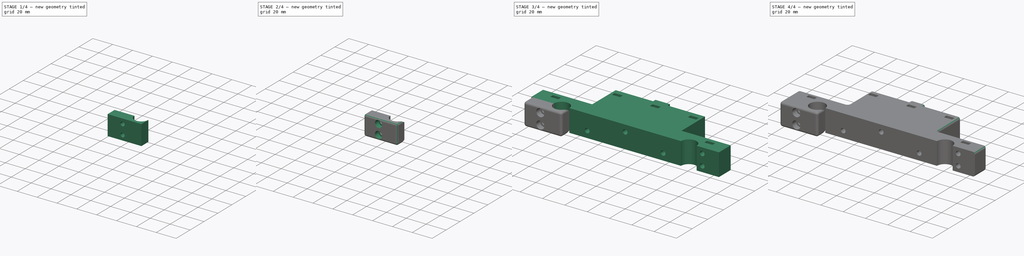
[diagram: build sequence overview — one tinted view per stage of 4, left to right]
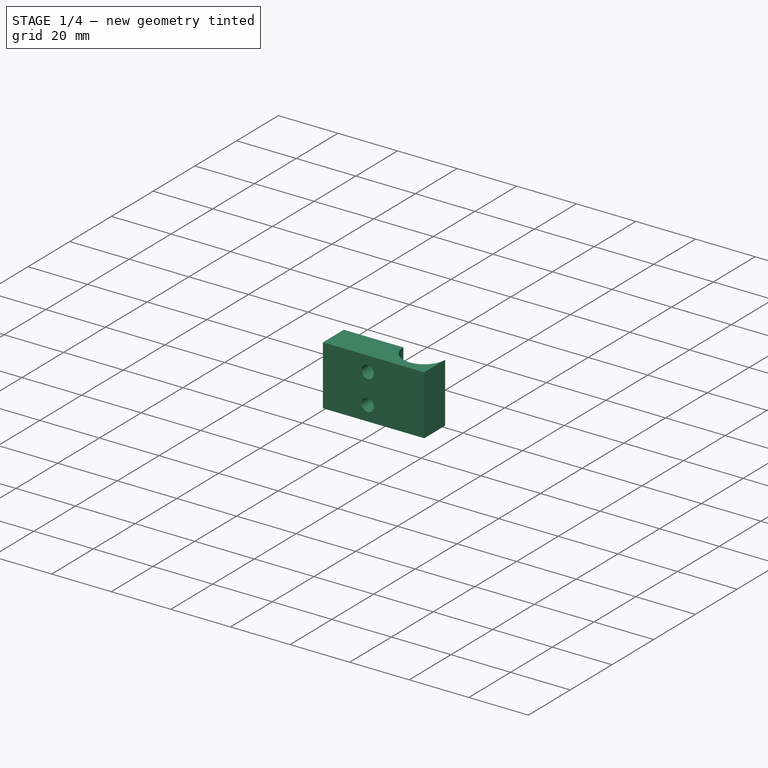
[diagram: stage 1 of 4 — iso view after this stage's code; geometry added in this stage tinted green]
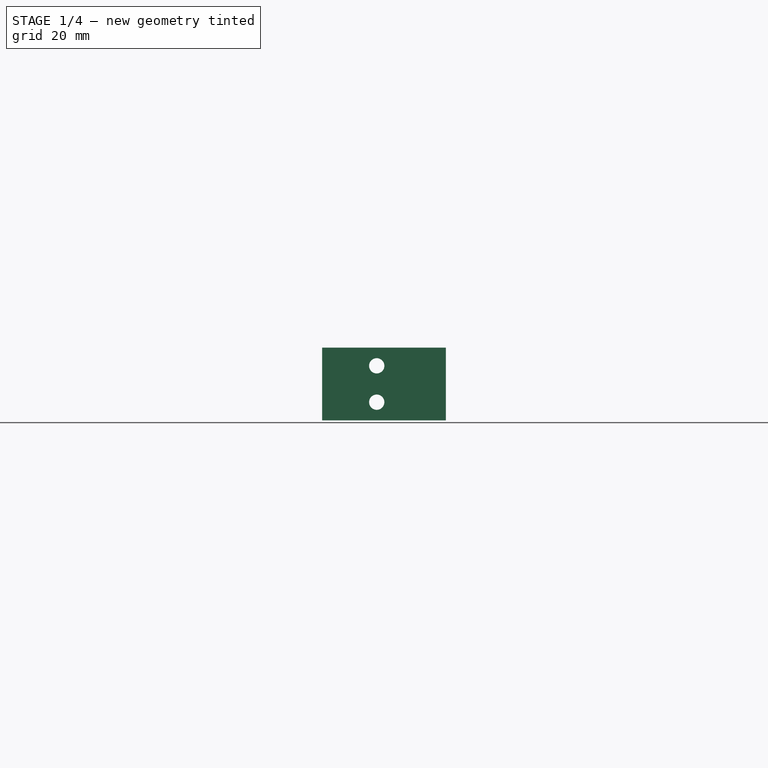
[diagram: stage 1 of 4 — front view after this stage's code; geometry added in this stage tinted green]
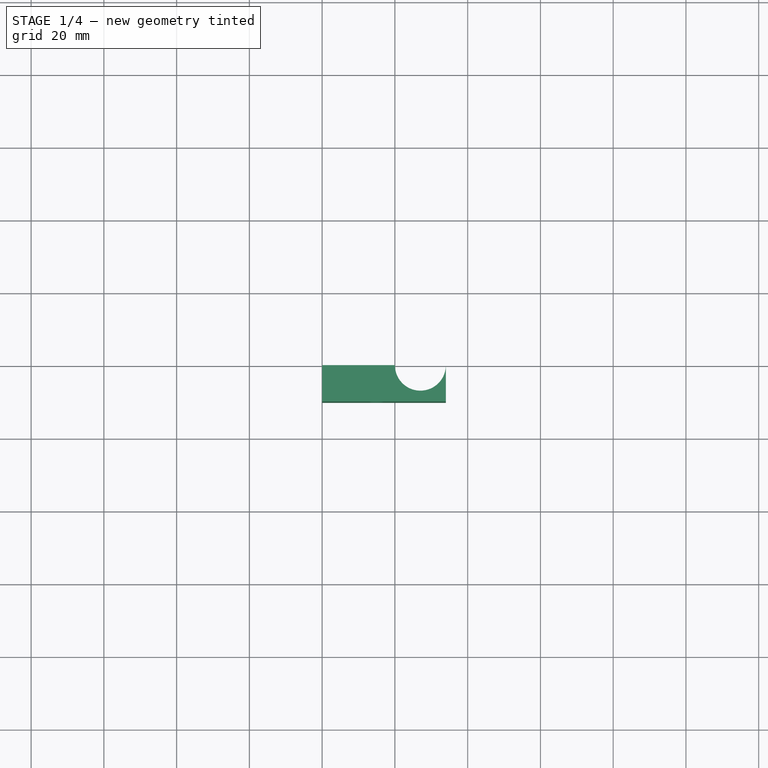
[diagram: stage 1 of 4 — top view after this stage's code; geometry added in this stage tinted green]
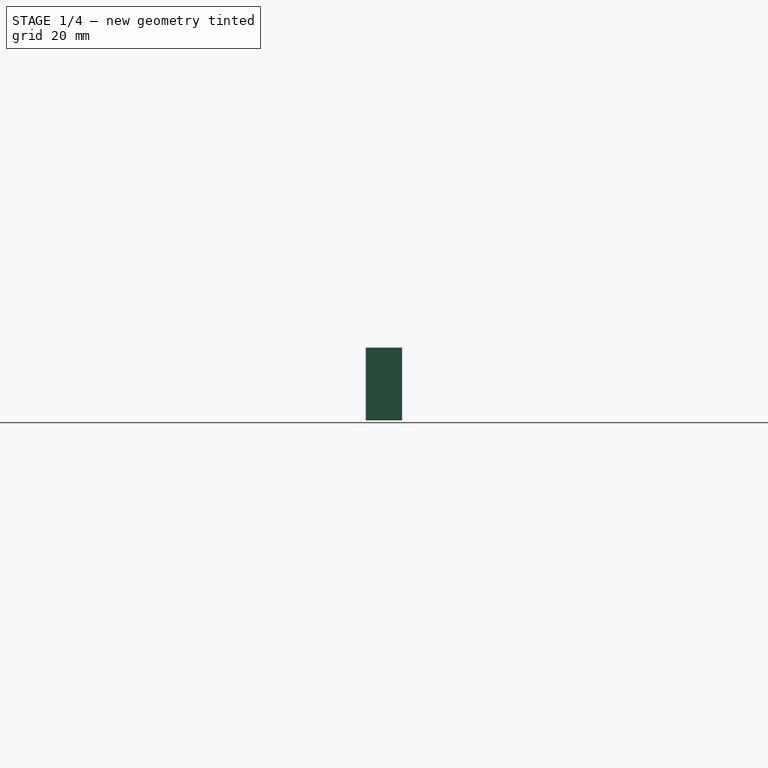
[diagram: stage 1 of 4 — right view after this stage's code; geometry added in this stage tinted green]
FCSTD DOCUMENT  (FreeCAD 0.17R13541 (Git))
Label: back-light-france
License: All rights reserved
LicenseURL: http://en.wikipedia.org/wiki/All_rights_reserved
objects: Sketcher::SketchObject×7, PartDesign::Pocket×5, PartDesign::Pad×2, PartDesign::Fillet×2, PartDesign::Body×2
note: 25 computed .brp shape members not serialized (recipe doc carries the construction recipe); baked Part::Feature solids carry a one-line shape summary decoded from their .brp

FEATURE [Sketcher::SketchObject] Sketch004
  MapMode = 5
  Support = -> [XY_Plane001]
  sketch-geometry (6):
    g0: LineSegment [constr] StartX=0 StartY=0 StartZ=0 EndX=34 EndY=0 EndZ=0
    g1: LineSegment StartX=34 StartY=0 StartZ=0 EndX=34 EndY=-10 EndZ=0
    g2: LineSegment StartX=34 StartY=-10 StartZ=0 EndX=0 EndY=-10 EndZ=0
    g3: LineSegment StartX=0 StartY=-10 StartZ=0 EndX=0 EndY=0 EndZ=0
    g4: ArcOfCircle CenterX=27 CenterY=0 CenterZ=0 NormalX=0 NormalY=0 NormalZ=1 AngleXU=0 Radius=7 StartAngle=3.14159 EndAngle=6.28319
    g5: LineSegment StartX=20 StartY=0 StartZ=0 EndX=0 EndY=0 EndZ=0
  constraints (17):
    c: Coincident(g0,g1)
    c: Coincident(g1,g2)
    c: Coincident(g2,g3)
    c: Coincident(g3,g0)
    c: Horizontal(g0)
    c: Horizontal(g2)
    c: Vertical(g1)
    c: Vertical(g3)
    c: Coincident(g0,g-1)
    c: DistanceY(g3,g3) = 10
    c: DistanceX(g2,g2) = 34
    c: PointOnObject(g4,g0)
    c: PointOnObject(g4,g0)
    c: Coincident(g4,g0)
    c: Radius(g4) = 7
    c: Coincident(g5,g4)
    c: Coincident(g5,g-1)
FEATURE [PartDesign::Pad] Pad001
  Length = 20
  Length2 = 100
  Midplane = true
  Profile = -> Sketch004
  Type = 0
FEATURE [Sketcher::SketchObject] Sketch005
  ExternalGeometry = -> [Pad001]
  MapMode = 5
  Placement = pos=(0,-10,0) rot=(1,0,0;1.5708rad)
  Support = -> [Pad001]
  sketch-geometry (5):
    g0: Circle CenterX=15 CenterY=5 CenterZ=0 NormalX=0 NormalY=0 NormalZ=1 AngleXU=0 Radius=2.1
    g1: Circle CenterX=15 CenterY=-5 CenterZ=0 NormalX=0 NormalY=0 NormalZ=1 AngleXU=0 Radius=2.1
    g2: LineSegment [constr] StartX=15 StartY=-5 StartZ=0 EndX=15 EndY=5 EndZ=0
    g3: LineSegment [constr] StartX=15 StartY=5 StartZ=0 EndX=15 EndY=10 EndZ=0
    g4: LineSegment [constr] StartX=15 StartY=-5 StartZ=0 EndX=15 EndY=-10 EndZ=0
  constraints (14):
    c: Equal(g0,g1)
    c: Coincident(g2,g0)
    c: Vertical(g2)
    c: Coincident(g2,g1)
    c: Radius(g1) = 2.1
    c: Coincident(g3,g0)
    c: PointOnObject(g3,g-3)
    c: Coincident(g4,g1)
    c: PointOnObject(g4,g-4)
    c: Vertical(g4)
    c: Vertical(g3)
    c: Equal(g3,g4)
    c: DistanceX(g-5,g1) = 15
    c: DistanceY(g0,g3) = 5
FEATURE [PartDesign::Pocket] Pocket003
  BaseFeature = -> Pad001
  Length = 5
  Length2 = 100
  Profile = -> Sketch005
  Type = 1
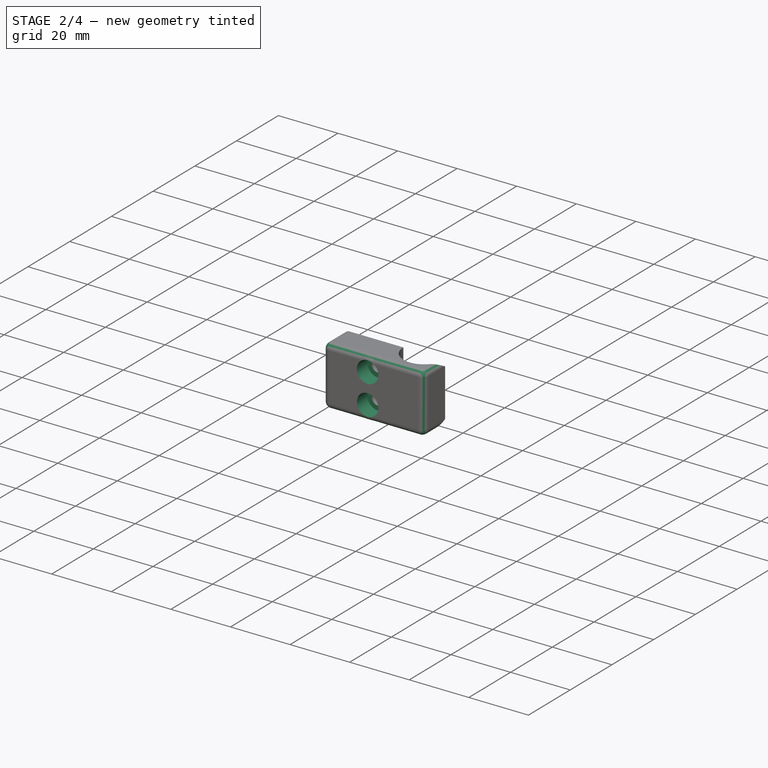
[diagram: stage 2 of 4 — iso view after this stage's code; geometry added in this stage tinted green]
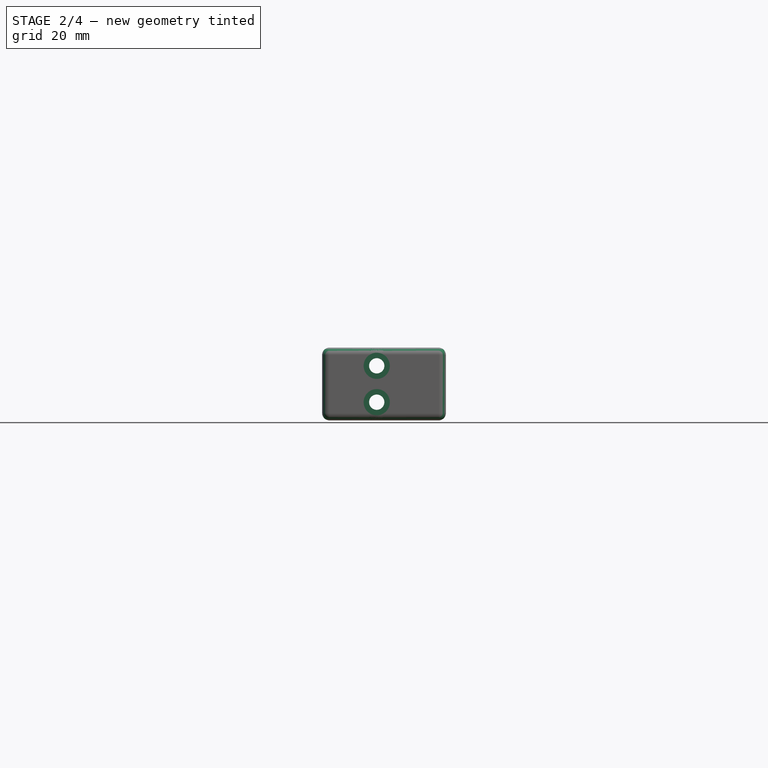
[diagram: stage 2 of 4 — front view after this stage's code; geometry added in this stage tinted green]
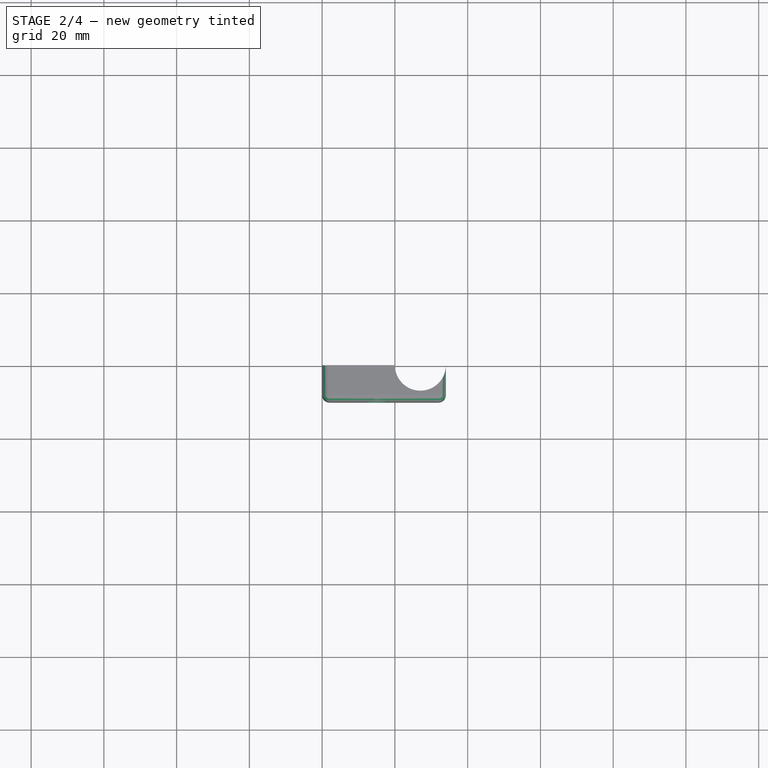
[diagram: stage 2 of 4 — top view after this stage's code; geometry added in this stage tinted green]
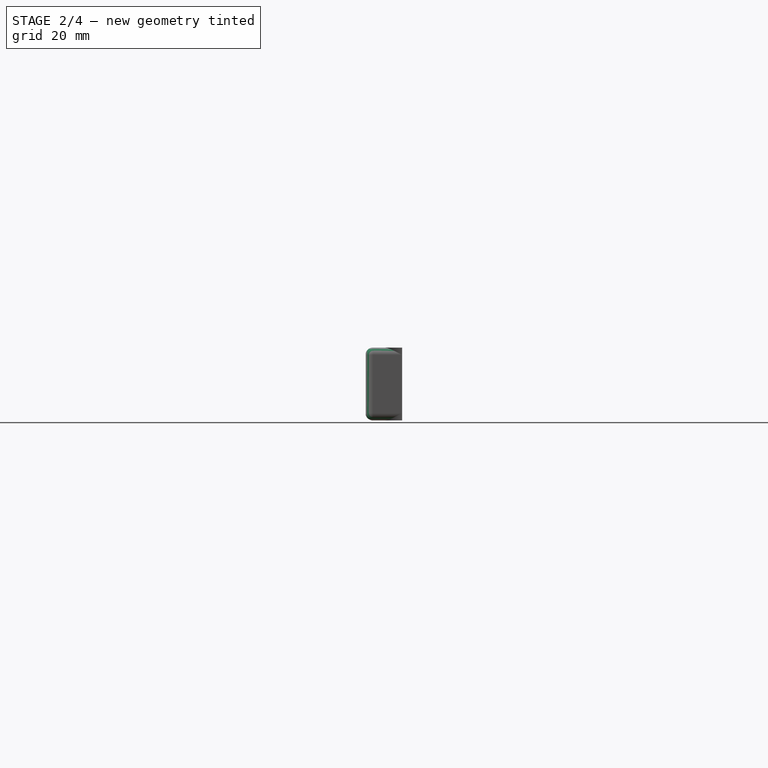
[diagram: stage 2 of 4 — right view after this stage's code; geometry added in this stage tinted green]
FEATURE [PartDesign::Body] Body
  Group = -> [Sketch,Pad,Sketch001,Pocket,Sketch003,Pocket002,Sketch006,Pocket004,Fillet001]
  Origin = -> Origin
  Tip = -> Fillet001
FEATURE [Sketcher::SketchObject] Sketch007
  ExternalGeometry = -> [Pocket003]
  MapMode = 5
  Placement = pos=(0,-10,0) rot=(1,0,0;1.5708rad)
  Support = -> [Pocket003]
  sketch-geometry (3):
    g0: Circle CenterX=15 CenterY=5 CenterZ=0 NormalX=0 NormalY=0 NormalZ=1 AngleXU=0 Radius=3.6
    g1: Circle CenterX=15 CenterY=-5 CenterZ=0 NormalX=0 NormalY=0 NormalZ=1 AngleXU=0 Radius=3.6
    g2: LineSegment [constr] StartX=15 StartY=5 StartZ=0 EndX=15 EndY=-5 EndZ=0
  constraints (8):
    c: Equal(g0,g1)
    c: Radius(g0) = 3.6
    c: Coincident(g2,g0)
    c: Coincident(g2,g1)
    c: Vertical(g2)
    c: DistanceY(g0,g-3) = 5
    c: DistanceY(g-3,g1) = 5
    c: DistanceX(g-3,g1) = 15
FEATURE [PartDesign::Pocket] Pocket005
  BaseFeature = -> Pocket003
  Length = 5
  Length2 = 100
  Profile = -> Sketch007
  Type = 0
FEATURE [PartDesign::Fillet] Fillet
  Base = -> Pocket005 [Edge4,Edge9,Edge2,Edge8,Edge10,Edge15,Edge13,Edge3]
  BaseFeature = -> Pocket005
  Radius = 2
FEATURE [PartDesign::Body] Body001
  Group = -> [Sketch004,Pad001,Sketch005,Pocket003,Sketch007,Pocket005,Fillet]
  Origin = -> Origin001
  Tip = -> Fillet
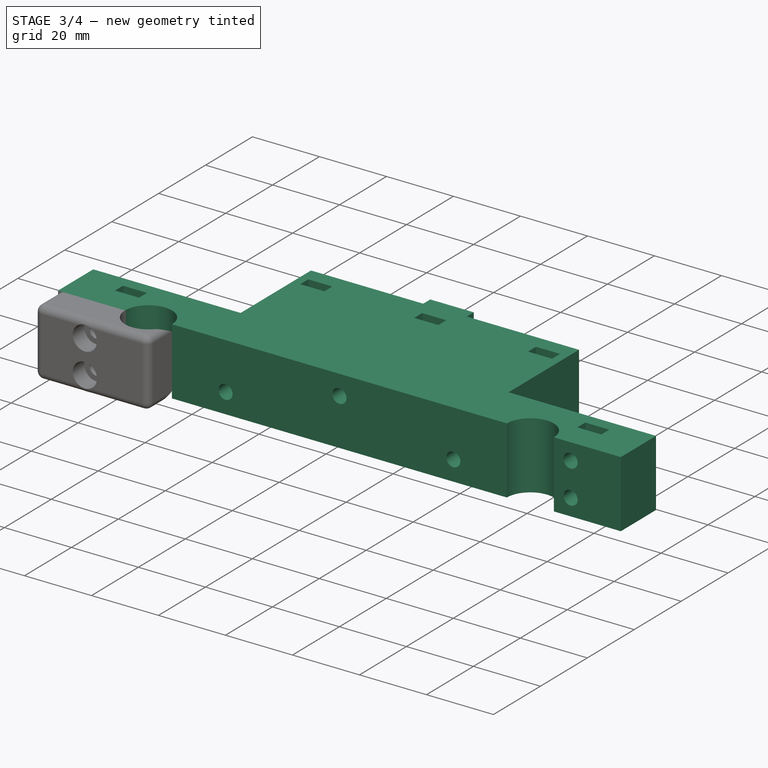
[diagram: stage 3 of 4 — iso view after this stage's code; geometry added in this stage tinted green]
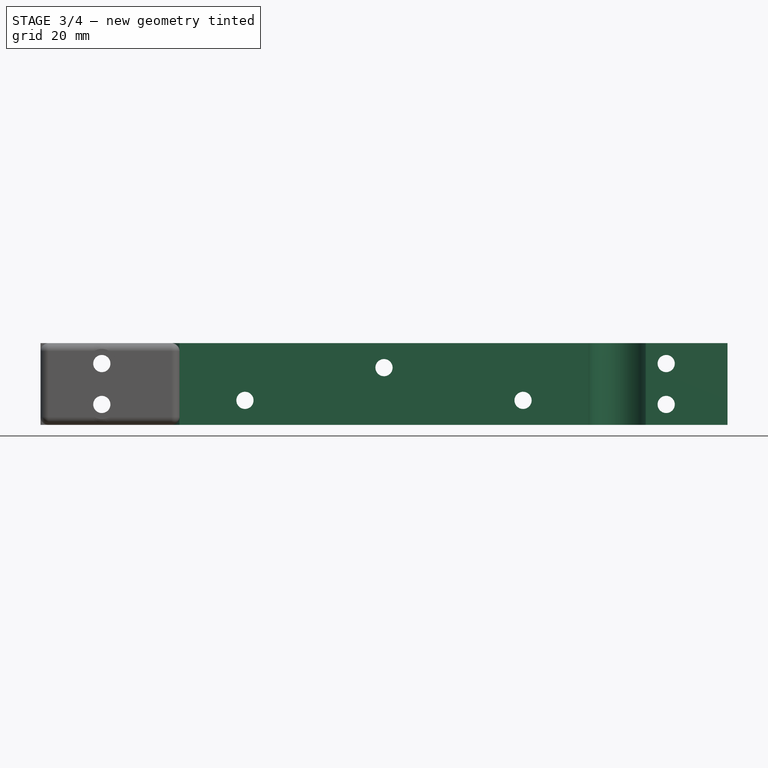
[diagram: stage 3 of 4 — front view after this stage's code; geometry added in this stage tinted green]
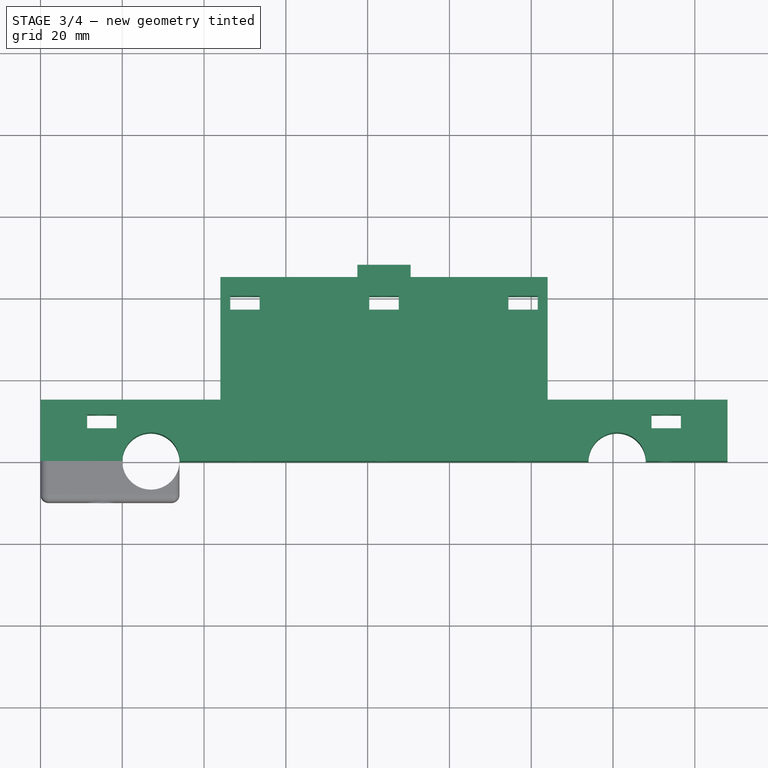
[diagram: stage 3 of 4 — top view after this stage's code; geometry added in this stage tinted green]
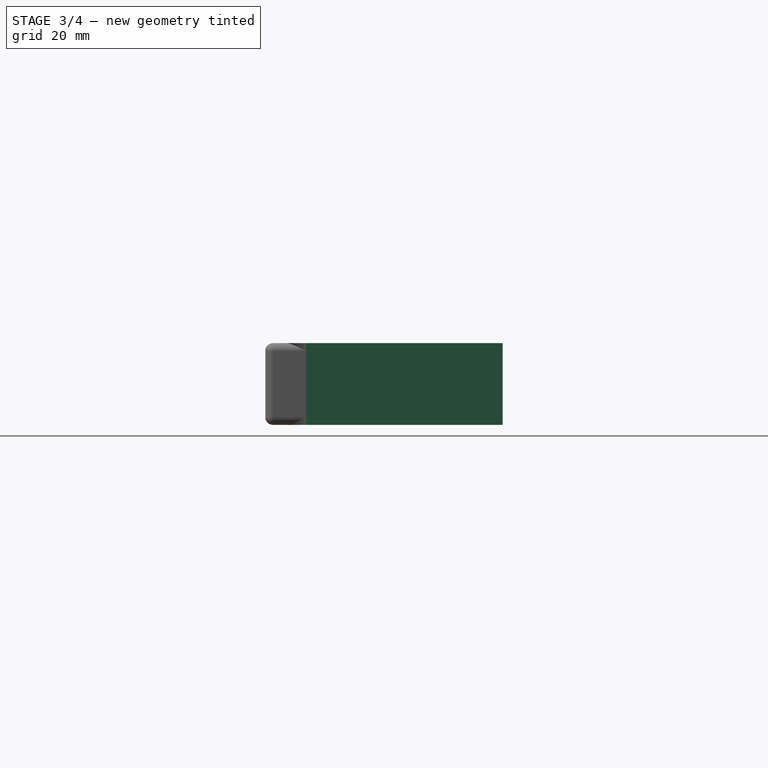
[diagram: stage 3 of 4 — right view after this stage's code; geometry added in this stage tinted green]
FEATURE [Sketcher::SketchObject] Sketch
  MapMode = 5
  Support = -> [XY_Plane]
  sketch-geometry (19):
    g0: LineSegment [constr] StartX=0 StartY=0 StartZ=0 EndX=44 EndY=45 EndZ=0
    g1: LineSegment StartX=44 StartY=45 StartZ=0 EndX=77.5 EndY=45 EndZ=0
    g2: LineSegment StartX=77.5 StartY=45 StartZ=0 EndX=77.5 EndY=48 EndZ=0
    g3: LineSegment StartX=77.5 StartY=48 StartZ=0 EndX=90.5 EndY=48 EndZ=0
    g4: LineSegment StartX=90.5 StartY=48 StartZ=0 EndX=90.5 EndY=45 EndZ=0
    g5: LineSegment StartX=90.5 StartY=45 StartZ=0 EndX=124 EndY=45 EndZ=0
    g6: LineSegment [constr] StartX=124 StartY=45 StartZ=0 EndX=168 EndY=0 EndZ=0
    g7: LineSegment [constr] StartX=77.5 StartY=45 StartZ=0 EndX=90.5 EndY=45 EndZ=0
    g8: ArcOfCircle CenterX=27 CenterY=0 CenterZ=0 NormalX=0 NormalY=0 NormalZ=1 AngleXU=0 Radius=7 StartAngle=0 EndAngle=3.14159
    g9: ArcOfCircle CenterX=141 CenterY=0 CenterZ=0 NormalX=0 NormalY=0 NormalZ=1 AngleXU=0 Radius=7 StartAngle=0 EndAngle=3.14159
    g10: LineSegment StartX=0 StartY=0 StartZ=0 EndX=20 EndY=0 EndZ=0
    g11: LineSegment StartX=34 StartY=0 StartZ=0 EndX=134 EndY=0 EndZ=0
    g12: LineSegment StartX=148 StartY=0 StartZ=0 EndX=168 EndY=0 EndZ=0
    g13: LineSegment StartX=0 StartY=0 StartZ=0 EndX=0 EndY=15 EndZ=0
    g14: LineSegment StartX=0 StartY=15 StartZ=0 EndX=44 EndY=15 EndZ=0
    g15: LineSegment StartX=44 StartY=45 StartZ=0 EndX=44 EndY=15 EndZ=0
    g16: LineSegment StartX=124 StartY=45 StartZ=0 EndX=124 EndY=15 EndZ=0
    g17: LineSegment StartX=124 StartY=15 StartZ=0 EndX=168 EndY=15 EndZ=0
    g18: LineSegment StartX=168 StartY=15 StartZ=0 EndX=168 EndY=0 EndZ=0
  constraints (55):
    c: Coincident(g0,g-1)
    c: Coincident(g1,g0)
    c: Horizontal(g1)
    c: Coincident(g2,g1)
    c: Vertical(g2)
    c: Coincident(g3,g2)
    c: Horizontal(g3)
    c: Coincident(g4,g3)
    c: Vertical(g4)
    c: Coincident(g5,g4)
    c: Horizontal(g5)
    c: Coincident(g6,g5)
    c: PointOnObject(g6,g-1)
    c: Coincident(g7,g1)
    c: Coincident(g7,g4)
    c: Horizontal(g7)
    c: Equal(g1,g5)
    c: DistanceX(g0,g5) = 80
    c: DistanceY(g2,g2) = 3
    c: PointOnObject(g8,g-1)
    c: PointOnObject(g8,g-1)
    c: PointOnObject(g8,g-1)
    c: PointOnObject(g9,g-1)
    c: PointOnObject(g9,g-1)
    c: PointOnObject(g9,g-1)
    c: Radius(g8) = 7
    c: Equal(g8,g9)
    c: Coincident(g10,g-1)
    c: Coincident(g10,g8)
    c: Coincident(g11,g8)
    c: Coincident(g11,g9)
    c: Coincident(g12,g9)
    c: Coincident(g12,g6)
    c: Equal(g10,g12)
    c: DistanceX(g8,g9) = 114
    c: DistanceY(g-1,g0) = 45
    c: Equal(g0,g6)
    c: DistanceX(g3,g3) = 13
    c: DistanceX(g10,g10) = 20
    c: Coincident(g13,g-1)
    c: Vertical(g13)
    c: Coincident(g14,g13)
    c: Horizontal(g14)
    c: Coincident(g15,g0)
    c: Coincident(g15,g14)
    c: Vertical(g15)
    c: DistanceY(g13,g13) = 15
    c: Coincident(g16,g5)
    c: Vertical(g16)
    c: Coincident(g17,g16)
    c: Horizontal(g17)
    c: Coincident(g18,g17)
    c: Coincident(g18,g6)
    c: Vertical(g18)
    c: Equal(g18,g13)
FEATURE [PartDesign::Pad] Pad
  Length = 20
  Length2 = 100
  Midplane = true
  Profile = -> Sketch
  Type = 0
FEATURE [Sketcher::SketchObject] Sketch001
  ExternalGeometry = -> [Pad]
  MapMode = 5
  Placement = pos=(0,45,0) rot=(0,0.707107,0.707107;3.14159rad)
  Support = -> [Pad]
  sketch-geometry (16):
    g0: Circle CenterX=-118 CenterY=-4 CenterZ=0 NormalX=0 NormalY=0 NormalZ=1 AngleXU=0 Radius=2.1
    g1: Circle CenterX=-84 CenterY=4 CenterZ=0 NormalX=0 NormalY=0 NormalZ=1 AngleXU=0 Radius=2.1
    g2: Circle CenterX=-50 CenterY=-4 CenterZ=0 NormalX=0 NormalY=0 NormalZ=1 AngleXU=0 Radius=2.1
    g3: LineSegment [constr] StartX=-118 StartY=-4 StartZ=0 EndX=-50 EndY=-4 EndZ=0
    g4: LineSegment [constr] StartX=-50 StartY=-4 StartZ=0 EndX=-44 EndY=-4 EndZ=0
    g5: LineSegment [constr] StartX=-124 StartY=-4 StartZ=0 EndX=-118 EndY=-4 EndZ=0
    g6: LineSegment [constr] StartX=-90.5 StartY=4 StartZ=0 EndX=-84 EndY=4 EndZ=0
    g7: LineSegment [constr] StartX=-84 StartY=4 StartZ=0 EndX=-77.5 EndY=4 EndZ=0
    g8: LineSegment [constr] StartX=-153 StartY=5 StartZ=0 EndX=-15 EndY=5 EndZ=0
    g9: LineSegment [constr] StartX=-15 StartY=5 StartZ=0 EndX=-15 EndY=-5 EndZ=0
    g10: LineSegment [constr] StartX=-15 StartY=-5 StartZ=0 EndX=-153 EndY=-5 EndZ=0
    g11: LineSegment [constr] StartX=-153 StartY=-5 StartZ=0 EndX=-153 EndY=5 EndZ=0
    g12: Circle CenterX=-153 CenterY=-5 CenterZ=0 NormalX=0 NormalY=0 NormalZ=1 AngleXU=0 Radius=2.1
    g13: Circle CenterX=-153 CenterY=5 CenterZ=0 NormalX=0 NormalY=0 NormalZ=1 AngleXU=0 Radius=2.1
    g14: Circle CenterX=-15 CenterY=5 CenterZ=0 NormalX=0 NormalY=0 NormalZ=1 AngleXU=0 Radius=2.1
    g15: Circle CenterX=-15 CenterY=-5 CenterZ=0 NormalX=0 NormalY=0 NormalZ=1 AngleXU=0 Radius=2.1
  constraints (43):
    c: Radius(g0) = 2.1
    c: Equal(g1,g0)
    c: Equal(g0,g2)
    c: Coincident(g3,g2)
    c: Horizontal(g3)
    c: Coincident(g0,g3)
    c: Coincident(g4,g2)
    c: Horizontal(g4)
    c: Coincident(g5,g0)
    c: Horizontal(g5)
    c: Equal(g4,g5)
    c: Coincident(g6,g1)
    c: Coincident(g7,g1)
    c: Horizontal(g6)
    c: Horizontal(g7)
    c: Equal(g7,g6)
    c: DistanceX(g0,g2) = 68
    c: Coincident(g8,g9)
    c: Coincident(g9,g10)
    c: Coincident(g10,g11)
    c: Coincident(g11,g8)
    c: Horizontal(g8)
    c: Horizontal(g10)
    c: Vertical(g9)
    c: Vertical(g11)
    c: DistanceX(g-10,g10) = 15
    c: DistanceX(g9,g-11) = 15
    c: DistanceY(g-10,g10) = 5
    c: DistanceY(g8,g-10) = 5
    c: PointOnObject(g5,g-6)
    c: PointOnObject(g4,g-7)
    c: DistanceY(g-7,g4) = 6
    c: PointOnObject(g6,g-9)
    c: PointOnObject(g7,g-8)
    c: DistanceY(g6,g-9) = 6
    c: Equal(g15,g13)
    c: Equal(g13,g12)
    c: Equal(g12,g14)
    c: Equal(g15,g0)
    c: Coincident(g13,g8)
    c: Coincident(g12,g10)
    c: Coincident(g14,g8)
    c: Coincident(g15,g9)
FEATURE [PartDesign::Pocket] Pocket
  BaseFeature = -> Pad
  Length = 5
  Length2 = 100
  Midplane = true
  Profile = -> Sketch001
  Type = 1
FEATURE [Sketcher::SketchObject] Sketch003
  MapMode = 5
  Placement = pos=(0,0,-10) rot=(1,0,0;3.14159rad)
  sketch-geometry (33):
    g0: LineSegment StartX=11.4 StartY=-8 StartZ=0 EndX=18.6 EndY=-8 EndZ=0
    g1: LineSegment StartX=18.6 StartY=-8 StartZ=0 EndX=18.6 EndY=-11.4 EndZ=0
    g2: LineSegment StartX=18.6 StartY=-11.4 StartZ=0 EndX=11.4 EndY=-11.4 EndZ=0
    g3: LineSegment StartX=11.4 StartY=-11.4 StartZ=0 EndX=11.4 EndY=-8 EndZ=0
    g4: LineSegment StartX=46.4 StartY=-37 StartZ=0 EndX=53.6 EndY=-37 EndZ=0
    g5: LineSegment StartX=53.6 StartY=-37 StartZ=0 EndX=53.6 EndY=-40.4 EndZ=0
    g6: LineSegment StartX=53.6 StartY=-40.4 StartZ=0 EndX=46.4 EndY=-40.4 EndZ=0
    g7: LineSegment StartX=46.4 StartY=-40.4 StartZ=0 EndX=46.4 EndY=-37 EndZ=0
    g8: LineSegment StartX=114.4 StartY=-37 StartZ=0 EndX=121.6 EndY=-37 EndZ=0
    g9: LineSegment StartX=121.6 StartY=-37 StartZ=0 EndX=121.6 EndY=-40.4 EndZ=0
    g10: LineSegment StartX=121.6 StartY=-40.4 StartZ=0 EndX=114.4 EndY=-40.4 EndZ=0
    g11: LineSegment StartX=114.4 StartY=-40.4 StartZ=0 EndX=114.4 EndY=-37 EndZ=0
    g12: LineSegment StartX=80.4 StartY=-37 StartZ=0 EndX=87.6 EndY=-37 EndZ=0
    g13: LineSegment StartX=87.6 StartY=-37 StartZ=0 EndX=87.6 EndY=-40.4 EndZ=0
    g14: LineSegment StartX=87.6 StartY=-40.4 StartZ=0 EndX=80.4 EndY=-40.4 EndZ=0
    g15: LineSegment StartX=80.4 StartY=-40.4 StartZ=0 EndX=80.4 EndY=-37 EndZ=0
    g16: LineSegment StartX=149.4 StartY=-8 StartZ=0 EndX=156.6 EndY=-8 EndZ=0
    g17: LineSegment StartX=156.6 StartY=-8 StartZ=0 EndX=156.6 EndY=-11.4 EndZ=0
    g18: LineSegment StartX=156.6 StartY=-11.4 StartZ=0 EndX=149.4 EndY=-11.4 EndZ=0
    g19: LineSegment StartX=149.4 StartY=-11.4 StartZ=0 EndX=149.4 EndY=-8 EndZ=0
    g20: LineSegment [constr] StartX=18.6 StartY=-8 StartZ=0 EndX=149.4 EndY=-8 EndZ=0
    g21: LineSegment [constr] StartX=114.4 StartY=-37 StartZ=0 EndX=87.6 EndY=-37 EndZ=0
    g22: LineSegment [constr] StartX=80.4 StartY=-37 StartZ=0 EndX=53.6 EndY=-37 EndZ=0
    g23: LineSegment [constr] StartX=121.6 StartY=-37 StartZ=0 EndX=124 EndY=-37 EndZ=0
    g24: LineSegment [constr] StartX=46.4 StartY=-37 StartZ=0 EndX=44 EndY=-37 EndZ=0
    g25: LineSegment [constr] StartX=156.6 StartY=-8 StartZ=0 EndX=168 EndY=-8 EndZ=0
    g26: LineSegment [constr] StartX=11.4 StartY=-8 StartZ=0 EndX=0 EndY=-8 EndZ=0
    g27: LineSegment [constr] StartX=46.4 StartY=-40.4 StartZ=0 EndX=50 EndY=-40.4 EndZ=0
    g28: LineSegment [constr] StartX=50 StartY=-40.4 StartZ=0 EndX=53.6 EndY=-40.4 EndZ=0
    g29: LineSegment [constr] StartX=114.4 StartY=-40.4 StartZ=0 EndX=118 EndY=-40.4 EndZ=0
    g30: LineSegment [constr] StartX=118 StartY=-40.4 StartZ=0 EndX=121.6 EndY=-40.4 EndZ=0
    g31: LineSegment [constr] StartX=18.6 StartY=-8 StartZ=0 EndX=15 EndY=-8 EndZ=0
    g32: LineSegment [constr] StartX=11.4 StartY=-8 StartZ=0 EndX=15 EndY=-8 EndZ=0
  constraints (87):
    c: Coincident(g0,g1)
    c: Coincident(g1,g2)
    c: Coincident(g2,g3)
    c: Coincident(g3,g0)
    c: Horizontal(g0)
    c: Horizontal(g2)
    c: Vertical(g1)
    c: Vertical(g3)
    c: Coincident(g4,g5)
    c: Coincident(g5,g6)
    c: Coincident(g6,g7)
    c: Coincident(g7,g4)
    c: Horizontal(g4)
    c: Horizontal(g6)
    c: Vertical(g5)
    c: Vertical(g7)
    c: Coincident(g8,g9)
    c: Coincident(g9,g10)
    c: Coincident(g10,g11)
    c: Coincident(g11,g8)
    c: Horizontal(g8)
    c: Horizontal(g10)
    c: Vertical(g9)
    c: Vertical(g11)
    c: Coincident(g12,g13)
    c: Coincident(g13,g14)
    c: Coincident(g14,g15)
    c: Coincident(g15,g12)
    c: Horizontal(g12)
    c: Horizontal(g14)
    c: Vertical(g13)
    c: Vertical(g15)
    c: Coincident(g16,g17)
    c: Coincident(g17,g18)
    c: Coincident(g18,g19)
    c: Coincident(g19,g16)
    c: Horizontal(g16)
    c: Horizontal(g18)
    c: Vertical(g17)
    c: Vertical(g19)
    c: Equal(g18,g10)
    c: Equal(g10,g14)
    c: Equal(g14,g6)
    c: Equal(g6,g2)
    c: Equal(g3,g7)
    c: Equal(g7,g15)
    c: Equal(g15,g11)
    c: Equal(g11,g19)
    c: DistanceY(g3,g3) = 3.4
    c: DistanceX(g2,g2) = 7.2
    c: Coincident(g20,g0)
    c: Coincident(g20,g16)
    c: Horizontal(g20)
    c: Coincident(g21,g8)
    c: Coincident(g21,g12)
    c: Coincident(g22,g12)
    c: Coincident(g22,g4)
    c: Equal(g22,g21)
    c: Horizontal(g21)
    c: Horizontal(g22)
    c: Coincident(g23,g8)
    c: Horizontal(g23)
    c: Coincident(g24,g4)
    c: Horizontal(g24)
    c: Equal(g24,g23)
    c: Coincident(g25,g16)
    c: Horizontal(g25)
    c: Horizontal(g26)
    c: Coincident(g0,g26)
    c: Equal(g26,g25)
    c: Coincident(g27,g6)
    c: Coincident(g28,g27)
    c: Coincident(g28,g5)
    c: Coincident(g29,g10)
    c: Coincident(g30,g29)
    c: Coincident(g30,g9)
    c: Equal(g30,g29)
    c: Equal(g28,g27)
    c: DistanceX(g27,g29) = 68
    c: PointOnObject(g27,g6)
    c: PointOnObject(g29,g10)
    c: Coincident(g32,g31)
    c: Equal(g31,g32)
    c: PointOnObject(g31,g0)
    c: DistanceX(g-1,g31) = 15
    c: Coincident(g31,g0)
    c: Coincident(g32,g0)
FEATURE [PartDesign::Pocket] Pocket002
  BaseFeature = -> Pocket
  Length = 5
  Length2 = 100
  Profile = -> Sketch003
  Type = 1
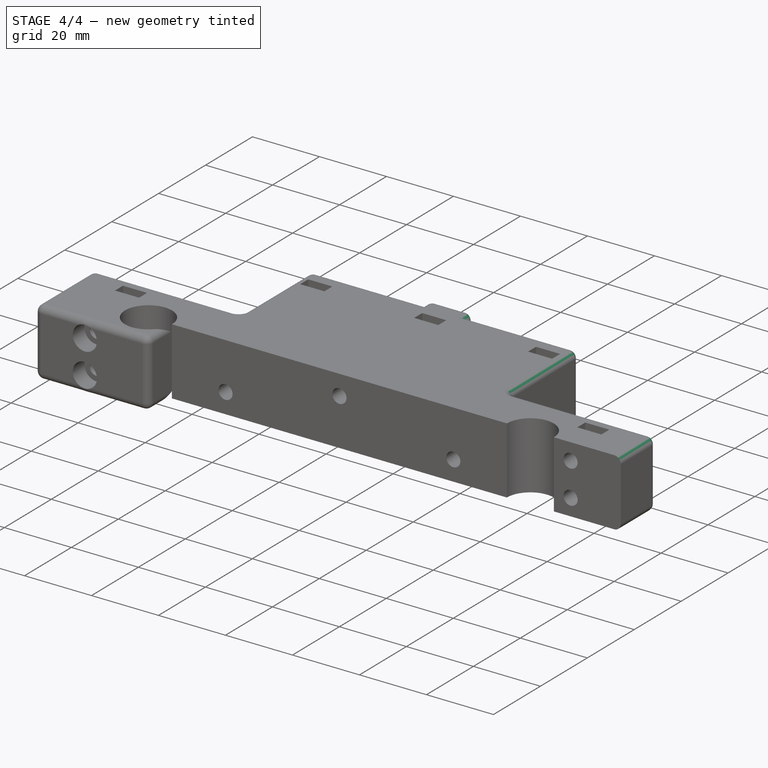
[diagram: stage 4 of 4 — iso view after this stage's code; geometry added in this stage tinted green]
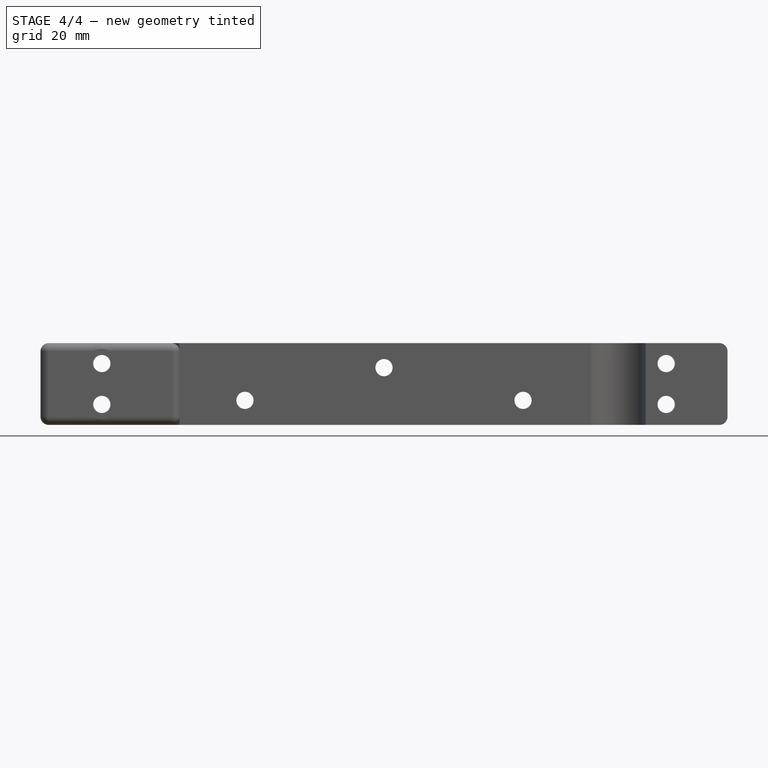
[diagram: stage 4 of 4 — front view after this stage's code; geometry added in this stage tinted green]
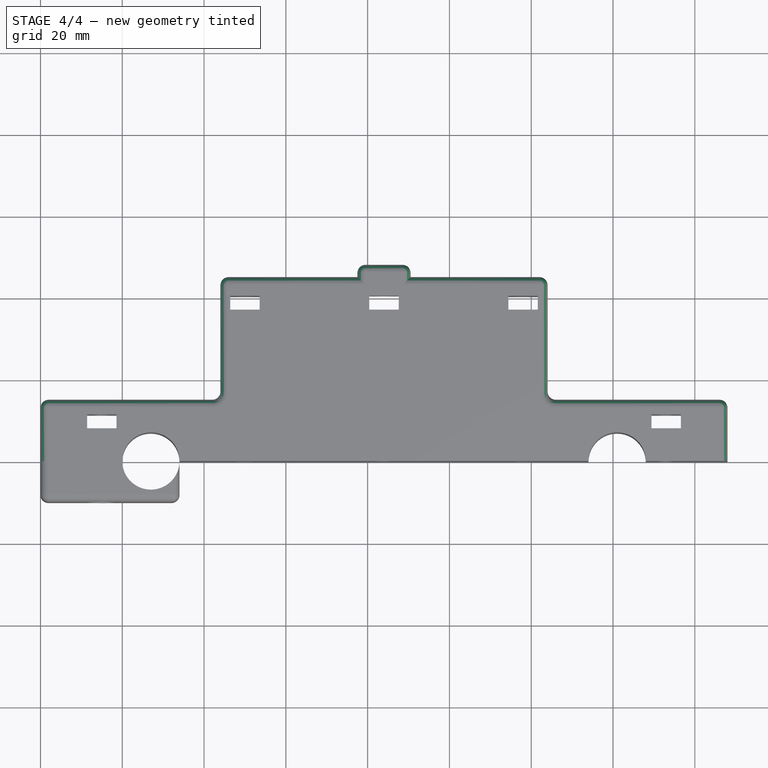
[diagram: stage 4 of 4 — top view after this stage's code; geometry added in this stage tinted green]
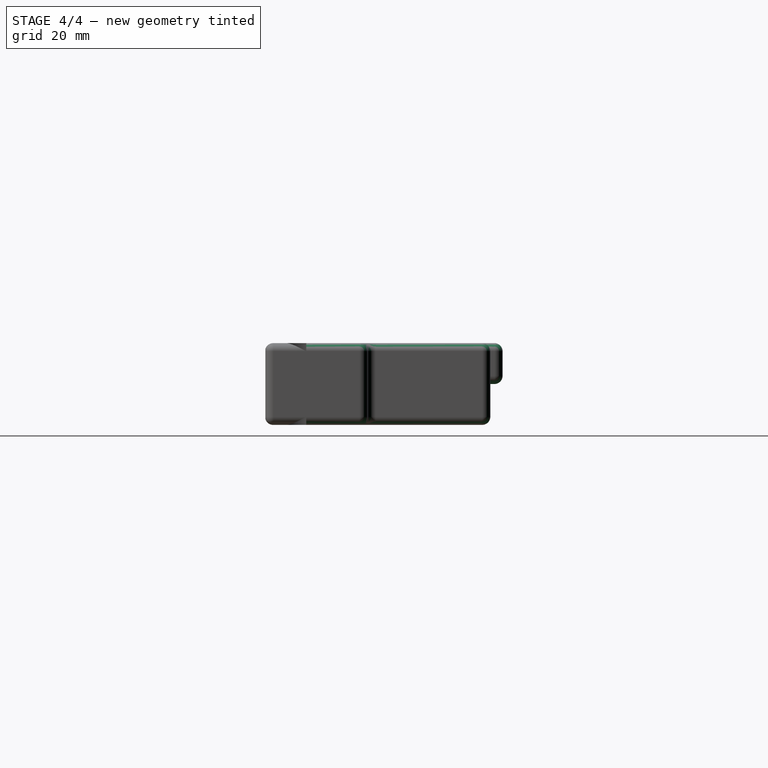
[diagram: stage 4 of 4 — right view after this stage's code; geometry added in this stage tinted green]
FEATURE [Sketcher::SketchObject] Sketch006
  ExternalGeometry = -> [Pocket002]
  MapMode = 5
  Placement = pos=(0,48,0) rot=(0,0.707107,0.707107;3.14159rad)
  Support = -> [Pocket002]
  sketch-geometry (11):
    g0: LineSegment StartX=-59 StartY=7 StartZ=0 EndX=-59 EndY=-10 EndZ=0
    g1: LineSegment StartX=-59 StartY=-10 StartZ=0 EndX=-109 EndY=-10 EndZ=0
    g2: LineSegment StartX=-109 StartY=-10 StartZ=0 EndX=-109 EndY=7 EndZ=0
    g3: LineSegment StartX=-77.5 StartY=7 StartZ=0 EndX=-77.5 EndY=0 EndZ=0
    g4: LineSegment StartX=-77.5 StartY=0 StartZ=0 EndX=-90.5 EndY=0 EndZ=0
    g5: LineSegment StartX=-90.5 StartY=0 StartZ=0 EndX=-90.5 EndY=7 EndZ=0
    g6: LineSegment StartX=-109 StartY=7 StartZ=0 EndX=-90.5 EndY=7 EndZ=0
    g7: LineSegment StartX=-77.5 StartY=7 StartZ=0 EndX=-59 EndY=7 EndZ=0
    g8: LineSegment [constr] StartX=-90.5 StartY=7 StartZ=0 EndX=-77.5 EndY=7 EndZ=0
    g9: LineSegment [constr] StartX=-124 StartY=-10 StartZ=0 EndX=-109 EndY=-10 EndZ=0
    g10: LineSegment [constr] StartX=-44 StartY=-10 StartZ=0 EndX=-59 EndY=-10 EndZ=0
  constraints (30):
    c: Coincident(g0,g1)
    c: Coincident(g1,g2)
    c: Horizontal(g1)
    c: Vertical(g0)
    c: Vertical(g2)
    c: Coincident(g3,g4)
    c: Coincident(g4,g5)
    c: Vertical(g3)
    c: Vertical(g5)
    c: Coincident(g6,g2)
    c: Coincident(g6,g5)
    c: Coincident(g7,g3)
    c: Coincident(g7,g0)
    c: Equal(g6,g7)
    c: Equal(g5,g3)
    c: Horizontal(g6)
    c: Horizontal(g7)
    c: Coincident(g8,g5)
    c: Coincident(g8,g3)
    c: Horizontal(g8)
    c: DistanceX(g1,g1) = 50
    c: DistanceX(g8,g8) = 13
    c: PointOnObject(g1,g-3)
    c: Coincident(g9,g-3)
    c: Coincident(g9,g1)
    c: Coincident(g10,g-4)
    c: Coincident(g10,g0)
    c: Equal(g10,g9)
    c: DistanceY(g5,g5) = 7
    c: DistanceY(g2,g2) = 17
FEATURE [PartDesign::Pocket] Pocket004
  BaseFeature = -> Pocket002
  Length = 45
  Length2 = 100
  Profile = -> Sketch006
  Type = 0
FEATURE [PartDesign::Fillet] Fillet001
  Base = -> Pocket004 [Edge4,Edge3,Edge11,Edge2,Edge10,Edge45,Edge27,Edge82,Edge47,Edge26,Edge12,Edge112,Edge49,Edge51,Edge142,Edge143,Edge146,Edge144,Edge145,Edge172,Edge25,Edge113,Edge170,Edge55,Edge53,Edge102,Edge99,Edge22,Edge23,Edge106,Edge108,Edge24,Edge104,Edge105,Edge107,Edge21,Edge56,Edge54,Edge20,Edge95,+3 more]
  BaseFeature = -> Pocket004
  Radius = 2
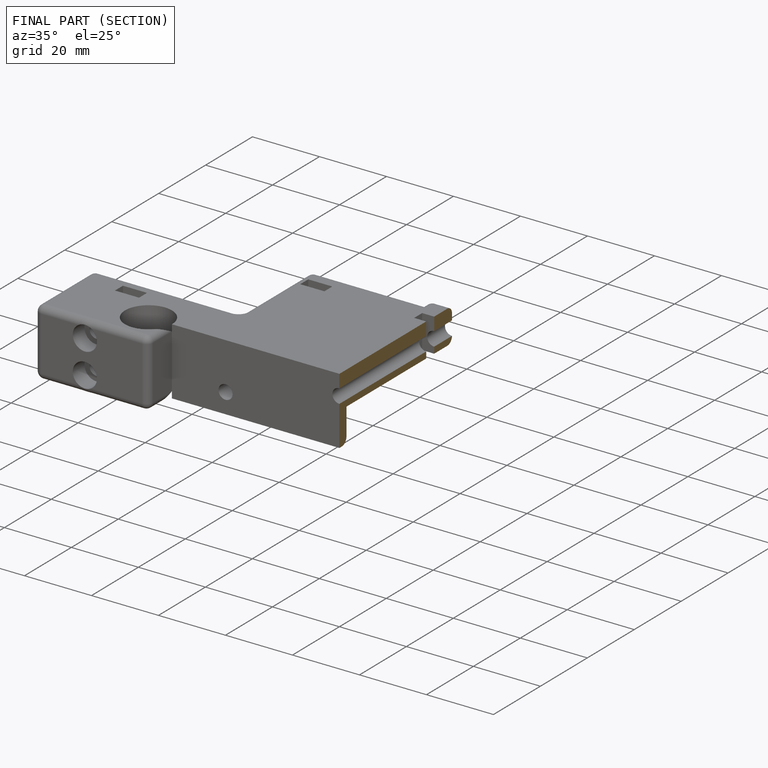
[diagram: finished part — half-section view (interior)]
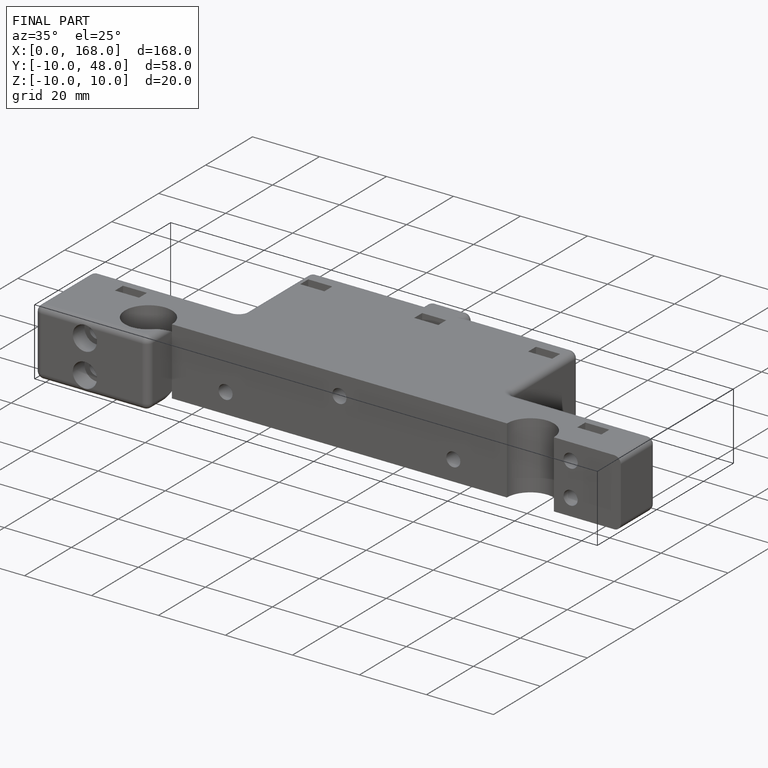
[diagram: finished part — iso view with bounding-box wireframe]
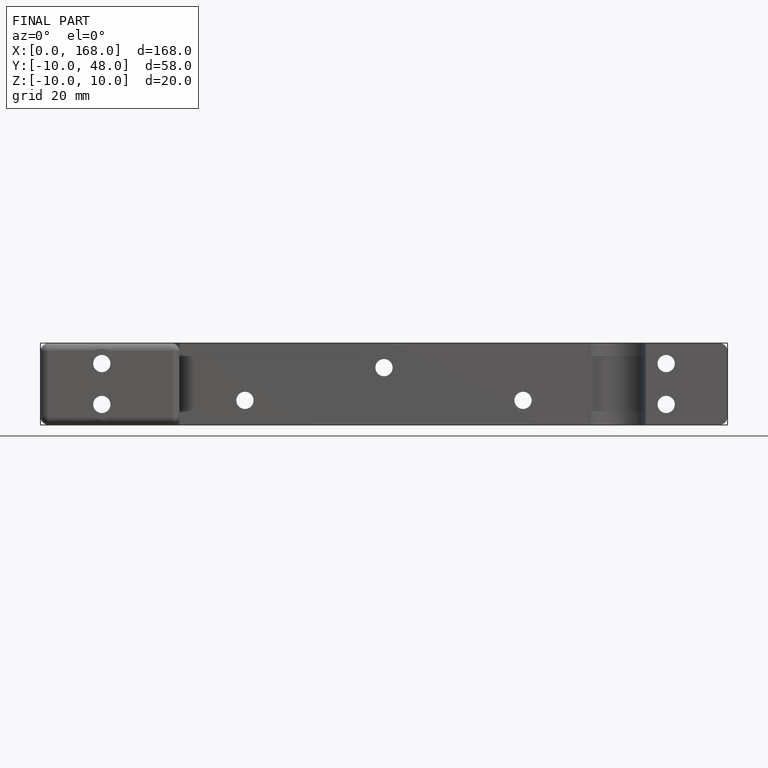
[diagram: finished part — front view with bounding-box wireframe]
